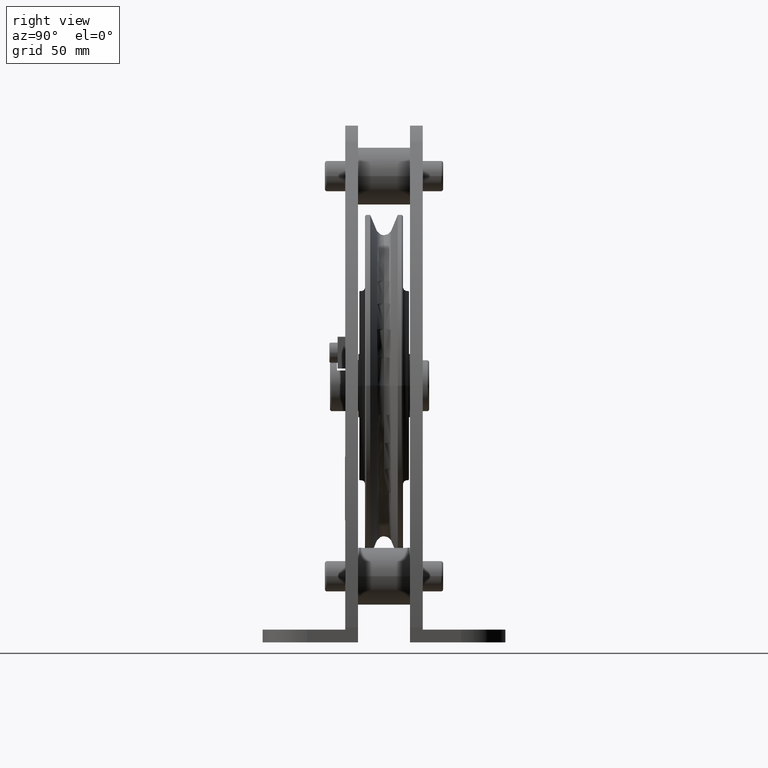
[diagram: clean part render]
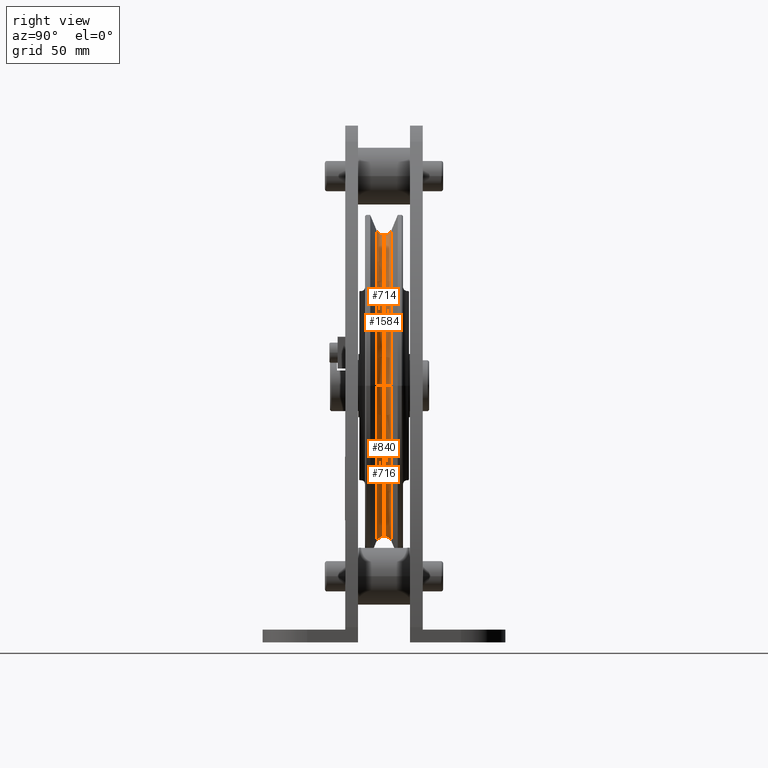
[diagram: same view with one multi-face feature highlighted, each face labeled with its STEP entity id]
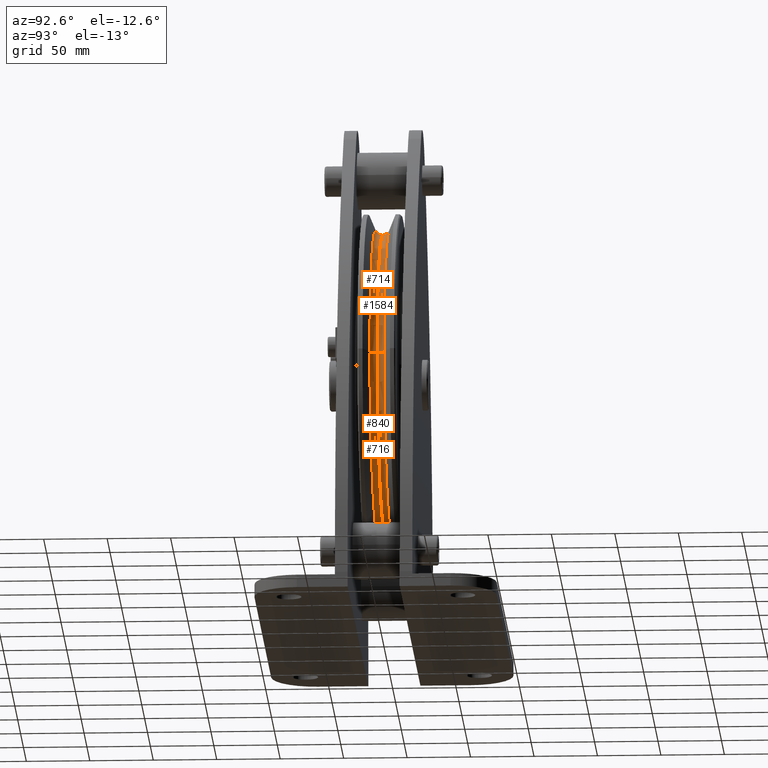
[diagram: same view with one multi-face feature highlighted, each face labeled with its STEP entity id]
A machine part, right view. The highlighted faces form ONE feature: a constant-radius fillet chain: 4 tangent blend faces with common blend radius 6 mm. The faces share edges in the B-rep.
A second angle (auxiliary view) of the same feature is appended — it is thin or edge-on in the first view.
Their STEP definitions:
[1] entity #840 (Torus):
#840=ADVANCED_FACE('',(#2253),#2254,.F.);
#2253=FACE_OUTER_BOUND('',#4325,.T.);
#2254=TOROIDAL_SURFACE('',#4326,124.4999999596,5.99999995959999);
#4325=EDGE_LOOP('',(#6962,#6963,#6964,#6965));
#4326=AXIS2_PLACEMENT_3D('',#6966,#6967,#6968);
#6962=ORIENTED_EDGE('',*,*,#12420,.T.);
#6963=ORIENTED_EDGE('',*,*,#12823,.F.);
#6964=ORIENTED_EDGE('',*,*,#12824,.T.);
#6965=ORIENTED_EDGE('',*,*,#12825,.F.);
#6966=CARTESIAN_POINT('',(0.0,0.0,0.0));
#6967=DIRECTION('',(0.0,-1.0,0.0));
#6968=DIRECTION('',(1.0,0.0,0.0));
#12420=EDGE_CURVE('',#14928,#14927,#14936,.T.);
#12823=EDGE_CURVE('',#15605,#14927,#15609,.T.);
#12824=EDGE_CURVE('',#15605,#15603,#15610,.T.);
#12825=EDGE_CURVE('',#14928,#15603,#15611,.T.);
#14927=VERTEX_POINT('',#19984);
#14928=VERTEX_POINT('',#19985);
#14936=CIRCLE('',#19993,118.5);
#15603=VERTEX_POINT('',#23105);
#15605=VERTEX_POINT('',#23108);
#15609=CIRCLE('',#23113,5.99999995959999);
#15610=CIRCLE('',#23114,122.203899);
#15611=CIRCLE('',#23115,5.99999995959999);
#19984=CARTESIAN_POINT('',(-118.5,-7.34788074540837E-016,1.39940656052786E-014));
#19985=CARTESIAN_POINT('',(118.5,-7.34788074540837E-016,-1.39940656052786E-014));
#19993=AXIS2_PLACEMENT_3D('',#28257,#28258,#28259);
#23105=CARTESIAN_POINT('',(122.203899,5.543277,0.0));
#23108=CARTESIAN_POINT('',(-122.203899,5.543277,1.49656613753676E-014));
#23113=AXIS2_PLACEMENT_3D('',#28832,#28833,#28834);
#23114=AXIS2_PLACEMENT_3D('',#28835,#28836,#28837);
#23115=AXIS2_PLACEMENT_3D('',#28838,#28839,#28840);
#28257=CARTESIAN_POINT('',(0.0,-7.34788074540837E-016,0.0));
#28258=DIRECTION('',(-0.0,1.0,0.0));
#28259=DIRECTION('',(0.0,0.0,1.0));
#28832=CARTESIAN_POINT('',(-124.4999999596,0.0,1.5246852644437E-014));
#28833=DIRECTION('',(-1.22464679914735E-016,0.0,-1.0));
#28834=DIRECTION('',(-1.0,0.0,1.22464679914735E-016));
#28835=CARTESIAN_POINT('',(0.0,5.543277,0.0));
#28836=DIRECTION('',(0.0,-1.0,0.0));
#28837=DIRECTION('',(1.0,0.0,0.0));
#28838=CARTESIAN_POINT('',(124.4999999596,0.0,-1.5246852644437E-014));
#28839=DIRECTION('',(-1.22464679914735E-016,-0.0,-1.0));
#28840=DIRECTION('',(1.0,0.0,-1.22464679914735E-016));
[2] entity #716 (Torus):
#716=ADVANCED_FACE('',(#2059),#2060,.F.);
#2059=FACE_OUTER_BOUND('',#4131,.T.);
#2060=TOROIDAL_SURFACE('',#4132,124.4999999596,5.99999995959999);
#4131=EDGE_LOOP('',(#6292,#6293,#6294,#6295));
#4132=AXIS2_PLACEMENT_3D('',#6296,#6297,#6298);
#6292=ORIENTED_EDGE('',*,*,#12420,.F.);
#6293=ORIENTED_EDGE('',*,*,#12418,.F.);
#6294=ORIENTED_EDGE('',*,*,#12421,.F.);
#6295=ORIENTED_EDGE('',*,*,#12416,.F.);
#6296=CARTESIAN_POINT('',(0.0,0.0,0.0));
#6297=DIRECTION('',(0.0,-1.0,0.0));
#6298=DIRECTION('',(1.0,0.0,0.0));
#12416=EDGE_CURVE('',#14927,#14930,#14931,.T.);
#12418=EDGE_CURVE('',#14932,#14928,#14934,.T.);
#12420=EDGE_CURVE('',#14928,#14927,#14936,.T.);
#12421=EDGE_CURVE('',#14930,#14932,#14937,.T.);
#14927=VERTEX_POINT('',#19984);
#14928=VERTEX_POINT('',#19985);
#14930=VERTEX_POINT('',#19987);
#14931=CIRCLE('',#19988,5.99999995959999);
#14932=VERTEX_POINT('',#19989);
#14934=CIRCLE('',#19991,5.99999995959999);
#14936=CIRCLE('',#19993,118.5);
#14937=CIRCLE('',#19994,122.203899);
#19984=CARTESIAN_POINT('',(-118.5,-7.34788074540837E-016,1.39940656052786E-014));
#19985=CARTESIAN_POINT('',(118.5,-7.34788074540837E-016,-1.39940656052786E-014));
#19987=CARTESIAN_POINT('',(-122.203899,-5.543277,1.49656613753676E-014));
#19988=AXIS2_PLACEMENT_3D('',#28248,#28249,#28250);
#19989=CARTESIAN_POINT('',(122.203899,-5.543277,0.0));
#19991=AXIS2_PLACEMENT_3D('',#28254,#28255,#28256);
#19993=AXIS2_PLACEMENT_3D('',#28257,#28258,#28259);
#19994=AXIS2_PLACEMENT_3D('',#28260,#28261,#28262);
#28248=CARTESIAN_POINT('',(-124.4999999596,0.0,1.5246852644437E-014));
#28249=DIRECTION('',(-1.22464679914735E-016,0.0,-1.0));
#28250=DIRECTION('',(-1.0,0.0,1.22464679914735E-016));
#28254=CARTESIAN_POINT('',(124.4999999596,0.0,-1.5246852644437E-014));
#28255=DIRECTION('',(-1.22464679914735E-016,-0.0,-1.0));
#28256=DIRECTION('',(1.0,0.0,-1.22464679914735E-016));
#28257=CARTESIAN_POINT('',(0.0,-7.34788074540837E-016,0.0));
#28258=DIRECTION('',(-0.0,1.0,0.0));
#28259=DIRECTION('',(0.0,0.0,1.0));
#28260=CARTESIAN_POINT('',(0.0,-5.543277,0.0));
#28261=DIRECTION('',(0.0,-1.0,0.0));
#28262=DIRECTION('',(1.0,0.0,0.0));
[3] entity #714 (Torus):
#714=ADVANCED_FACE('',(#2056),#2057,.F.);
#2056=FACE_OUTER_BOUND('',#4128,.T.);
#2057=TOROIDAL_SURFACE('',#4129,124.4999999596,5.99999995959999);
#4128=EDGE_LOOP('',(#6284,#6285,#6286,#6287));
#4129=AXIS2_PLACEMENT_3D('',#6288,#6289,#6290);
#6284=ORIENTED_EDGE('',*,*,#12415,.F.);
#6285=ORIENTED_EDGE('',*,*,#12416,.T.);
#6286=ORIENTED_EDGE('',*,*,#12417,.F.);
#6287=ORIENTED_EDGE('',*,*,#12418,.T.);
#6288=CARTESIAN_POINT('',(0.0,0.0,0.0));
#6289=DIRECTION('',(0.0,-1.0,0.0));
#6290=DIRECTION('',(1.0,0.0,0.0));
#12415=EDGE_CURVE('',#14927,#14928,#14929,.T.);
#12416=EDGE_CURVE('',#14927,#14930,#14931,.T.);
#12417=EDGE_CURVE('',#14932,#14930,#14933,.T.);
#12418=EDGE_CURVE('',#14932,#14928,#14934,.T.);
#14927=VERTEX_POINT('',#19984);
#14928=VERTEX_POINT('',#19985);
#14929=CIRCLE('',#19986,118.5);
#14930=VERTEX_POINT('',#19987);
#14931=CIRCLE('',#19988,5.99999995959999);
#14932=VERTEX_POINT('',#19989);
#14933=CIRCLE('',#19990,122.203899);
#14934=CIRCLE('',#19991,5.99999995959999);
#19984=CARTESIAN_POINT('',(-118.5,-7.34788074540837E-016,1.39940656052786E-014));
#19985=CARTESIAN_POINT('',(118.5,-7.34788074540837E-016,-1.39940656052786E-014));
#19986=AXIS2_PLACEMENT_3D('',#28245,#28246,#28247);
#19987=CARTESIAN_POINT('',(-122.203899,-5.543277,1.49656613753676E-014));
#19988=AXIS2_PLACEMENT_3D('',#28248,#28249,#28250);
#19989=CARTESIAN_POINT('',(122.203899,-5.543277,0.0));
#19990=AXIS2_PLACEMENT_3D('',#28251,#28252,#28253);
#19991=AXIS2_PLACEMENT_3D('',#28254,#28255,#28256);
#28245=CARTESIAN_POINT('',(0.0,-7.34788074540837E-016,0.0));
#28246=DIRECTION('',(-0.0,1.0,0.0));
#28247=DIRECTION('',(0.0,0.0,1.0));
#28248=CARTESIAN_POINT('',(-124.4999999596,0.0,1.5246852644437E-014));
#28249=DIRECTION('',(-1.22464679914735E-016,0.0,-1.0));
#28250=DIRECTION('',(-1.0,0.0,1.22464679914735E-016));
#28251=CARTESIAN_POINT('',(0.0,-5.543277,0.0));
#28252=DIRECTION('',(0.0,-1.0,0.0));
#28253=DIRECTION('',(1.0,0.0,0.0));
#28254=CARTESIAN_POINT('',(124.4999999596,0.0,-1.5246852644437E-014));
#28255=DIRECTION('',(-1.22464679914735E-016,-0.0,-1.0));
#28256=DIRECTION('',(1.0,0.0,-1.22464679914735E-016));
[4] entity #1584 (Torus):
#1584=ADVANCED_FACE('',(#3421),#3422,.F.);
#3421=FACE_OUTER_BOUND('',#5493,.T.);
#3422=TOROIDAL_SURFACE('',#5494,124.4999999596,5.99999995959999);
#5493=EDGE_LOOP('',(#10495,#10496,#10497,#10498));
#5494=AXIS2_PLACEMENT_3D('',#10499,#10500,#10501);
#10495=ORIENTED_EDGE('',*,*,#12415,.T.);
#10496=ORIENTED_EDGE('',*,*,#12825,.T.);
#10497=ORIENTED_EDGE('',*,*,#12821,.T.);
#10498=ORIENTED_EDGE('',*,*,#12823,.T.);
#10499=CARTESIAN_POINT('',(0.0,0.0,0.0));
#10500=DIRECTION('',(0.0,-1.0,0.0));
#10501=DIRECTION('',(1.0,0.0,0.0));
#12415=EDGE_CURVE('',#14927,#14928,#14929,.T.);
#12821=EDGE_CURVE('',#15603,#15605,#15607,.T.);
#12823=EDGE_CURVE('',#15605,#14927,#15609,.T.);
#12825=EDGE_CURVE('',#14928,#15603,#15611,.T.);
#14927=VERTEX_POINT('',#19984);
#14928=VERTEX_POINT('',#19985);
#14929=CIRCLE('',#19986,118.5);
#15603=VERTEX_POINT('',#23105);
#15605=VERTEX_POINT('',#23108);
#15607=CIRCLE('',#23111,122.203899);
#15609=CIRCLE('',#23113,5.99999995959999);
#15611=CIRCLE('',#23115,5.99999995959999);
#19984=CARTESIAN_POINT('',(-118.5,-7.34788074540837E-016,1.39940656052786E-014));
#19985=CARTESIAN_POINT('',(118.5,-7.34788074540837E-016,-1.39940656052786E-014));
#19986=AXIS2_PLACEMENT_3D('',#28245,#28246,#28247);
#23105=CARTESIAN_POINT('',(122.203899,5.543277,0.0));
#23108=CARTESIAN_POINT('',(-122.203899,5.543277,1.49656613753676E-014));
#23111=AXIS2_PLACEMENT_3D('',#28829,#28830,#28831);
#23113=AXIS2_PLACEMENT_3D('',#28832,#28833,#28834);
#23115=AXIS2_PLACEMENT_3D('',#28838,#28839,#28840);
#28245=CARTESIAN_POINT('',(0.0,-7.34788074540837E-016,0.0));
#28246=DIRECTION('',(-0.0,1.0,0.0));
#28247=DIRECTION('',(0.0,0.0,1.0));
#28829=CARTESIAN_POINT('',(0.0,5.543277,0.0));
#28830=DIRECTION('',(0.0,-1.0,0.0));
#28831=DIRECTION('',(1.0,0.0,0.0));
#28832=CARTESIAN_POINT('',(-124.4999999596,0.0,1.5246852644437E-014));
#28833=DIRECTION('',(-1.22464679914735E-016,0.0,-1.0));
#28834=DIRECTION('',(-1.0,0.0,1.22464679914735E-016));
#28838=CARTESIAN_POINT('',(124.4999999596,0.0,-1.5246852644437E-014));
#28839=DIRECTION('',(-1.22464679914735E-016,-0.0,-1.0));
#28840=DIRECTION('',(1.0,0.0,-1.22464679914735E-016));